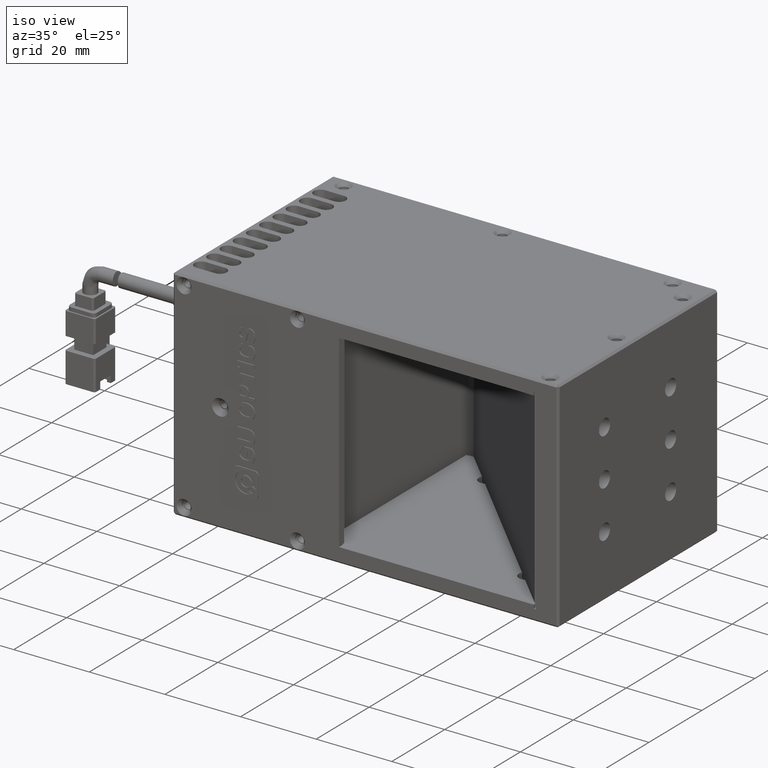
[diagram: clean part render]
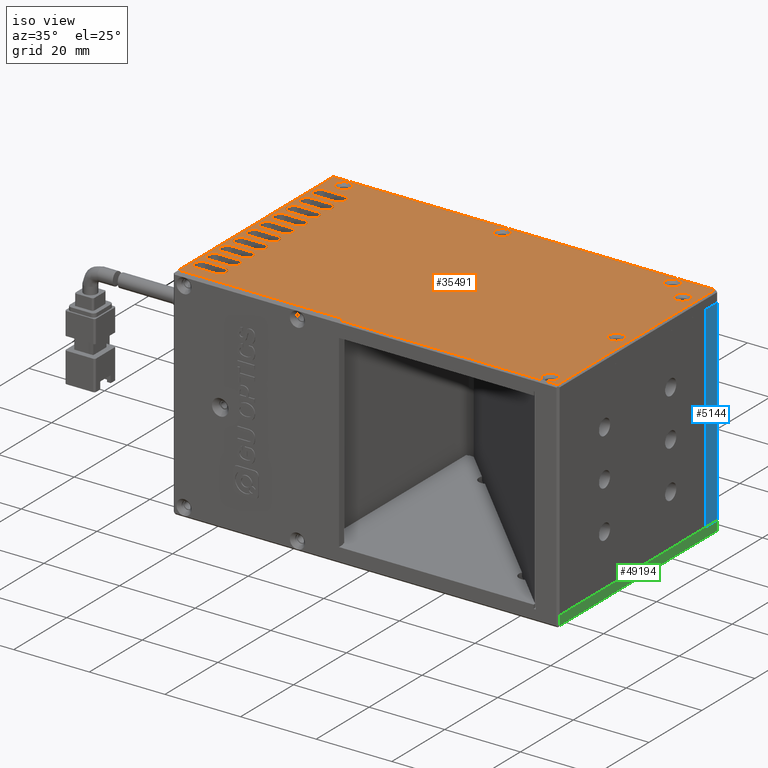
[diagram: same view with three faces highlighted in distinct colors, each labeled with its STEP entity id]
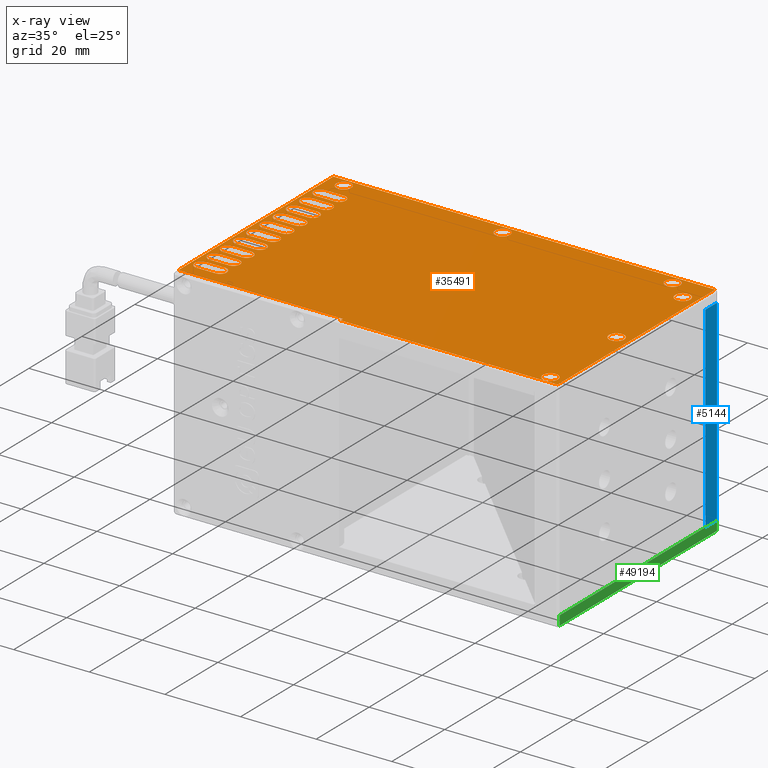
[diagram: x-ray of the same camera — body ghosted, the three highlighted faces saturated]
A machine part, iso view with three faces highlighted in distinct colors.
The next image is the same camera in x-ray (body ghosted, the three faces saturated) — at least one of them is partly hidden behind the body in this view.
Their STEP definitions:

[orange] entity #35491 — the highlighted planar face has unit normal (0, 0, -1).
#1 = VERTEX_POINT ( 'NONE', #50717 ) ;
#28 = DIRECTION ( 'NONE',  ( -1.000000000000000000, 0.0000000000000000000, -0.0000000000000000000 ) ) ;
#35 = DIRECTION ( 'NONE',  ( 1.000000000000000000, 0.0000000000000000000, 0.0000000000000000000 ) ) ;
#179 = DIRECTION ( 'NONE',  ( -0.0000000000000000000, -0.0000000000000000000, 1.000000000000000000 ) ) ;
#205 = AXIS2_PLACEMENT_3D ( 'NONE', #42269, #10490, #47532 ) ;
#401 = CARTESIAN_POINT ( 'NONE',  ( -58.82424922391152200, 38.77599333090265100, 58.00000000000955700 ) ) ;
#435 = AXIS2_PLACEMENT_3D ( 'NONE', #55548, #23803, #60918 ) ;
#496 = VECTOR ( 'NONE', #36617, 1000.000000000000000 ) ;
#657 = EDGE_CURVE ( 'NONE', #45064, #12126, #4008, .T. ) ;
#724 = CIRCLE ( 'NONE', #45792, 1.750000000000001600 ) ;
#737 = ORIENTED_EDGE ( 'NONE', *, *, #64308, .F. ) ;
#934 = CARTESIAN_POINT ( 'NONE',  ( -60.57424922391149400, 0.5259933309026375600, 58.00000000000955700 ) ) ;
#951 = EDGE_CURVE ( 'NONE', #48505, #64662, #26217, .T. ) ;
#962 = CIRCLE ( 'NONE', #55253, 1.999999999914958700 ) ;
#1009 = CARTESIAN_POINT ( 'NONE',  ( -60.57424922391150800, 23.77599333090263700, 58.00000000000955700 ) ) ;
#1559 = DIRECTION ( 'NONE',  ( 1.000000000000000000, 0.0000000000000000000, 0.0000000000000000000 ) ) ;
#1630 = DIRECTION ( 'NONE',  ( -0.0000000000000000000, -0.0000000000000000000, 1.000000000000000000 ) ) ;
#1632 = VERTEX_POINT ( 'NONE', #41015 ) ;
#1747 = FACE_BOUND ( 'NONE', #42244, .T. ) ;
#1851 = ORIENTED_EDGE ( 'NONE', *, *, #30786, .F. ) ;
#1892 = DIRECTION ( 'NONE',  ( 1.000000000000000000, 0.0000000000000000000, 0.0000000000000000000 ) ) ;
#1946 = DIRECTION ( 'NONE',  ( -0.0000000000000000000, -0.0000000000000000000, 1.000000000000000000 ) ) ;
#2128 = VERTEX_POINT ( 'NONE', #19617 ) ;
#2359 = DIRECTION ( 'NONE',  ( 1.000000000000000000, -0.0000000000000000000, 0.0000000000000000000 ) ) ;
#2451 = DIRECTION ( 'NONE',  ( 1.000000000000000000, 0.0000000000000000000, 0.0000000000000000000 ) ) ;
#2540 = EDGE_CURVE ( 'NONE', #31133, #61516, #33125, .T. ) ;
#2558 = CARTESIAN_POINT ( 'NONE',  ( -63.57424922391151500, 49.77699333090261300, 58.00000000000955700 ) ) ;
#2578 = AXIS2_PLACEMENT_3D ( 'NONE', #57320, #25522, #62651 ) ;
#2654 = EDGE_CURVE ( 'NONE', #56289, #19717, #62065, .T. ) ;
#2733 = DIRECTION ( 'NONE',  ( -1.000000000000000000, 0.0000000000000000000, -0.0000000000000000000 ) ) ;
#2915 = VERTEX_POINT ( 'NONE', #26603 ) ;
#3258 = CARTESIAN_POINT ( 'NONE',  ( -65.57424922391152200, 5.525993330902634800, 58.00000000000955700 ) ) ;
#3409 = FACE_BOUND ( 'NONE', #63558, .T. ) ;
#3575 = DIRECTION ( 'NONE',  ( -1.000000000000000000, 0.0000000000000000000, -0.0000000000000000000 ) ) ;
#3583 = VECTOR ( 'NONE', #8558, 1000.000000000000000 ) ;
#3675 = ORIENTED_EDGE ( 'NONE', *, *, #16150, .F. ) ;
#3688 = CARTESIAN_POINT ( 'NONE',  ( -65.57424922391152200, 25.52599333090264000, 58.00000000000955700 ) ) ;
#4008 = CIRCLE ( 'NONE', #47478, 1.750000000000001600 ) ;
#4036 = CARTESIAN_POINT ( 'NONE',  ( 33.42575077608847800, -6.223006669097353300, 58.00000000000955700 ) ) ;
#4094 = VERTEX_POINT ( 'NONE', #31349 ) ;
#4116 = EDGE_CURVE ( 'NONE', #14755, #23126, #66633, .T. ) ;
#4143 = CARTESIAN_POINT ( 'NONE',  ( -65.57424922391152200, 18.77599333090263300, 58.00000000000955700 ) ) ;
#4197 = CARTESIAN_POINT ( 'NONE',  ( -60.57424922391150800, 20.52599333090263300, 58.00000000000955700 ) ) ;
#4231 = LINE ( 'NONE', #29014, #16689 ) ;
#4315 = DIRECTION ( 'NONE',  ( -0.0000000000000000000, -0.0000000000000000000, 1.000000000000000000 ) ) ;
#4333 = VERTEX_POINT ( 'NONE', #54925 ) ;
#4358 = CARTESIAN_POINT ( 'NONE',  ( -58.82424922391149400, -1.224006669097364100, 58.00000000000956400 ) ) ;
#4554 = AXIS2_PLACEMENT_3D ( 'NONE', #31964, #179, #37305 ) ;
#4633 = VERTEX_POINT ( 'NONE', #47738 ) ;
#4668 = CIRCLE ( 'NONE', #26406, 1.750000000000001600 ) ;
#4731 = DIRECTION ( 'NONE',  ( -1.000000000000000000, 0.0000000000000000000, -0.0000000000000000000 ) ) ;
#4869 = CARTESIAN_POINT ( 'NONE',  ( 33.42575077608847800, 52.27699333090262000, 58.00000000000955700 ) ) ;
#4904 = VECTOR ( 'NONE', #55702, 1000.000000000000000 ) ;
#4972 = DIRECTION ( 'NONE',  ( 1.000000000000000000, 0.0000000000000000000, 0.0000000000000000000 ) ) ;
#5058 = FACE_BOUND ( 'NONE', #44407, .T. ) ;
#5072 = DIRECTION ( 'NONE',  ( -0.0000000000000000000, -0.0000000000000000000, 1.000000000000000000 ) ) ;
#5162 = VERTEX_POINT ( 'NONE', #41676 ) ;
#5214 = CIRCLE ( 'NONE', #53479, 1.750000000000001600 ) ;
#5266 = CIRCLE ( 'NONE', #60798, 1.750000000000001600 ) ;
#5321 = VERTEX_POINT ( 'NONE', #37710 ) ;
#5578 = EDGE_CURVE ( 'NONE', #35455, #46441, #43467, .T. ) ;
#5828 = CIRCLE ( 'NONE', #52603, 1.750000000000001600 ) ;
#5929 = VERTEX_POINT ( 'NONE', #27364 ) ;
#6080 = DIRECTION ( 'NONE',  ( -0.0000000000000000000, -0.0000000000000000000, 1.000000000000000000 ) ) ;
#6360 = DIRECTION ( 'NONE',  ( 1.000000000000000000, 0.0000000000000000000, 0.0000000000000000000 ) ) ;
#6482 = CARTESIAN_POINT ( 'NONE',  ( -21.57424922391151200, 49.77699333090261300, 57.99999999995271300 ) ) ;
#6934 = VERTEX_POINT ( 'NONE', #53178 ) ;
#6958 = AXIS2_PLACEMENT_3D ( 'NONE', #33394, #1630, #38684 ) ;
#7189 = CARTESIAN_POINT ( 'NONE',  ( -60.57424922391150800, 2.025993330902632100, 58.00000000000955700 ) ) ;
#7342 = VERTEX_POINT ( 'NONE', #53907 ) ;
#7371 = VECTOR ( 'NONE', #39577, 1000.000000000000000 ) ;
#7678 = DIRECTION ( 'NONE',  ( -0.0000000000000000000, 0.0000000000000000000, 1.000000000000000000 ) ) ;
#7867 = ORIENTED_EDGE ( 'NONE', *, *, #54707, .F. ) ;
#7899 = DIRECTION ( 'NONE',  ( 1.000000000000000000, 0.0000000000000000000, 0.0000000000000000000 ) ) ;
#7901 = CARTESIAN_POINT ( 'NONE',  ( -60.57424922391149400, -1.224006669097364100, 58.00000000000956400 ) ) ;
#7982 = AXIS2_PLACEMENT_3D ( 'NONE', #27962, #65064, #33365 ) ;
#8558 = DIRECTION ( 'NONE',  ( -1.000000000000000000, 0.0000000000000000000, -0.0000000000000000000 ) ) ;
#8592 = VERTEX_POINT ( 'NONE', #3258 ) ;
#8665 = CARTESIAN_POINT ( 'NONE',  ( -65.57424922391152200, 32.02599333090262900, 58.00000000000955700 ) ) ;
#8807 = VERTEX_POINT ( 'NONE', #15957 ) ;
#8849 = CIRCLE ( 'NONE', #67195, 1.750000000000001600 ) ;
#8903 = EDGE_LOOP ( 'NONE', ( #55621, #52237, #36328, #59710, #26487 ) ) ;
#9465 = DIRECTION ( 'NONE',  ( 1.000000000000000000, 0.0000000000000000000, 0.0000000000000000000 ) ) ;
#9480 = DIRECTION ( 'NONE',  ( -0.0000000000000000000, -0.0000000000000000000, 1.000000000000000000 ) ) ;
#9586 = AXIS2_PLACEMENT_3D ( 'NONE', #1009, #38118, #6360 ) ;
#9635 = AXIS2_PLACEMENT_3D ( 'NONE', #36063, #4315, #41413 ) ;
#9708 = LINE ( 'NONE', #51488, #36238 ) ;
#9802 = EDGE_CURVE ( 'NONE', #59982, #62490, #30721, .T. ) ;
#9915 = EDGE_CURVE ( 'NONE', #66863, #15697, #36519, .T. ) ;
#10006 = CARTESIAN_POINT ( 'NONE',  ( 33.42575077608847800, 32.02599333090262900, 58.00000000000955700 ) ) ;
#10024 = EDGE_CURVE ( 'NONE', #23126, #14755, #53040, .T. ) ;
#10097 = VECTOR ( 'NONE', #45762, 1000.000000000000000 ) ;
#10102 = ORIENTED_EDGE ( 'NONE', *, *, #53953, .F. ) ;
#10264 = CARTESIAN_POINT ( 'NONE',  ( 33.42575077608847800, 40.52599333090263700, 58.00000000000955700 ) ) ;
#10288 = DIRECTION ( 'NONE',  ( -1.000000000000000000, 0.0000000000000000000, -0.0000000000000000000 ) ) ;
#10293 = EDGE_CURVE ( 'NONE', #62950, #35455, #724, .T. ) ;
#10310 = EDGE_CURVE ( 'NONE', #4633, #27803, #41377, .T. ) ;
#10474 = EDGE_CURVE ( 'NONE', #5929, #1632, #63716, .T. ) ;
#10490 = DIRECTION ( 'NONE',  ( -0.0000000000000000000, -0.0000000000000000000, 1.000000000000000000 ) ) ;
#10548 = CARTESIAN_POINT ( 'NONE',  ( -65.57424922391152200, 13.77599333090263500, 58.00000000000955700 ) ) ;
#10577 = ORIENTED_EDGE ( 'NONE', *, *, #64658, .F. ) ;
#10797 = CIRCLE ( 'NONE', #51661, 1.750000000000001600 ) ;
#11014 = EDGE_CURVE ( 'NONE', #23761, #41226, #41059, .T. ) ;
#11187 = DIRECTION ( 'NONE',  ( -0.0000000000000000000, 0.0000000000000000000, 1.000000000000000000 ) ) ;
#11192 = VERTEX_POINT ( 'NONE', #22549 ) ;
#11339 = EDGE_LOOP ( 'NONE', ( #737, #3675, #50774, #53536, #13956 ) ) ;
#11468 = EDGE_CURVE ( 'NONE', #5162, #7342, #61611, .T. ) ;
#11482 = CARTESIAN_POINT ( 'NONE',  ( -65.57424922391152200, 43.77599333090263700, 58.00000000000955700 ) ) ;
#11550 = VERTEX_POINT ( 'NONE', #26369 ) ;
#11587 = AXIS2_PLACEMENT_3D ( 'NONE', #14731, #51801, #20055 ) ;
#11588 = CARTESIAN_POINT ( 'NONE',  ( -65.57424922391152200, 22.02599333090263300, 58.00000000000955700 ) ) ;
#11704 = CARTESIAN_POINT ( 'NONE',  ( -60.57424922391150800, 10.52599333090263300, 58.00000000000955700 ) ) ;
#11769 = DIRECTION ( 'NONE',  ( 1.000000000000000000, 0.0000000000000000000, 0.0000000000000000000 ) ) ;
#11870 = CARTESIAN_POINT ( 'NONE',  ( -60.57424922391150800, 23.77599333090263700, 58.00000000000955700 ) ) ;
#11990 = DIRECTION ( 'NONE',  ( -1.000000000000000000, 0.0000000000000000000, -0.0000000000000000000 ) ) ;
#12106 = CARTESIAN_POINT ( 'NONE',  ( -58.82424922391150800, 28.77599333090263700, 58.00000000000955700 ) ) ;
#12126 = VERTEX_POINT ( 'NONE', #25002 ) ;
#12557 = CARTESIAN_POINT ( 'NONE',  ( -60.57424922391150800, 30.52599333090263700, 58.00000000000955700 ) ) ;
#12616 = LINE ( 'NONE', #32071, #67275 ) ;
#12645 = VERTEX_POINT ( 'NONE', #4358 ) ;
#12649 = CIRCLE ( 'NONE', #49989, 1.750000000000001600 ) ;
#12773 = ORIENTED_EDGE ( 'NONE', *, *, #39904, .F. ) ;
#13018 = ORIENTED_EDGE ( 'NONE', *, *, #56778, .F. ) ;
#13221 = DIRECTION ( 'NONE',  ( 1.000000000000000000, 0.0000000000000000000, 0.0000000000000000000 ) ) ;
#13311 = VECTOR ( 'NONE', #3575, 1000.000000000000000 ) ;
#13338 = VECTOR ( 'NONE', #2359, 1000.000000000000000 ) ;
#13372 = EDGE_CURVE ( 'NONE', #65267, #26876, #5266, .T. ) ;
#13712 = CARTESIAN_POINT ( 'NONE',  ( -63.57424922391151500, 49.77699333090261300, 58.00000000000955700 ) ) ;
#13877 = CARTESIAN_POINT ( 'NONE',  ( 31.42575077600342200, 45.02699333090264100, 58.00000000000955700 ) ) ;
#13956 = ORIENTED_EDGE ( 'NONE', *, *, #16712, .F. ) ;
#14011 = CARTESIAN_POINT ( 'NONE',  ( 33.42575077608847800, 45.52599333090263700, 58.00000000000955700 ) ) ;
#14068 = DIRECTION ( 'NONE',  ( -0.0000000000000000000, -0.0000000000000000000, 1.000000000000000000 ) ) ;
#14133 = CARTESIAN_POINT ( 'NONE',  ( -60.57424922391150800, 15.52599333090263700, 58.00000000000955700 ) ) ;
#14183 = FACE_BOUND ( 'NONE', #40288, .T. ) ;
#14420 = DIRECTION ( 'NONE',  ( 1.224646799147353500E-016, -1.000000000000000000, -0.0000000000000000000 ) ) ;
#14507 = EDGE_CURVE ( 'NONE', #4333, #12645, #28108, .T. ) ;
#14604 = ORIENTED_EDGE ( 'NONE', *, *, #15634, .F. ) ;
#14731 = CARTESIAN_POINT ( 'NONE',  ( -60.57424922391150800, 8.775993330902631200, 58.00000000000955700 ) ) ;
#14755 = VERTEX_POINT ( 'NONE', #30686 ) ;
#14862 = VERTEX_POINT ( 'NONE', #21382 ) ;
#15181 = EDGE_CURVE ( 'NONE', #20783, #68242, #56144, .T. ) ;
#15568 = ORIENTED_EDGE ( 'NONE', *, *, #68020, .F. ) ;
#15583 = EDGE_CURVE ( 'NONE', #55228, #56289, #31136, .T. ) ;
#15634 = EDGE_CURVE ( 'NONE', #49053, #28008, #56015, .T. ) ;
#15697 = VERTEX_POINT ( 'NONE', #50728 ) ;
#15767 = VERTEX_POINT ( 'NONE', #14133 ) ;
#15838 = FACE_BOUND ( 'NONE', #48366, .T. ) ;
#15880 = DIRECTION ( 'NONE',  ( 1.000000000000000000, 0.0000000000000000000, 0.0000000000000000000 ) ) ;
#15957 = CARTESIAN_POINT ( 'NONE',  ( -60.57424922391150800, 25.52599333090264000, 58.00000000000955700 ) ) ;
#15973 = CARTESIAN_POINT ( 'NONE',  ( -60.57424922391150800, 22.02599333090263300, 58.00000000000955700 ) ) ;
#16064 = CARTESIAN_POINT ( 'NONE',  ( -60.57424922391152200, 38.77599333090265100, 58.00000000000955700 ) ) ;
#16150 = EDGE_CURVE ( 'NONE', #8592, #40369, #41669, .T. ) ;
#16273 = ORIENTED_EDGE ( 'NONE', *, *, #10310, .F. ) ;
#16497 = ORIENTED_EDGE ( 'NONE', *, *, #30545, .F. ) ;
#16586 = ORIENTED_EDGE ( 'NONE', *, *, #46950, .F. ) ;
#16689 = VECTOR ( 'NONE', #60776, 1000.000000000000000 ) ;
#16712 = EDGE_CURVE ( 'NONE', #54602, #45064, #5828, .T. ) ;
#16842 = DIRECTION ( 'NONE',  ( 1.000000000000000000, 0.0000000000000000000, 0.0000000000000000000 ) ) ;
#17192 = ORIENTED_EDGE ( 'NONE', *, *, #29067, .F. ) ;
#17267 = DIRECTION ( 'NONE',  ( 1.000000000000000000, 0.0000000000000000000, 0.0000000000000000000 ) ) ;
#17296 = ORIENTED_EDGE ( 'NONE', *, *, #49455, .F. ) ;
#17524 = FACE_BOUND ( 'NONE', #67565, .T. ) ;
#17611 = LINE ( 'NONE', #64647, #31676 ) ;
#18144 = VERTEX_POINT ( 'NONE', #8665 ) ;
#18246 = CARTESIAN_POINT ( 'NONE',  ( 33.42575077608847800, 25.52599333090264000, 58.00000000000955700 ) ) ;
#18295 = CARTESIAN_POINT ( 'NONE',  ( -60.57424922391150800, 7.025993330902629500, 58.00000000000955700 ) ) ;
#18397 = CARTESIAN_POINT ( 'NONE',  ( 33.42575077608847800, 10.52599333090263300, 58.00000000000955700 ) ) ;
#18465 = EDGE_CURVE ( 'NONE', #6934, #11550, #51768, .T. ) ;
#18977 = DIRECTION ( 'NONE',  ( 1.000000000000000000, -0.0000000000000000000, 0.0000000000000000000 ) ) ;
#19033 = DIRECTION ( 'NONE',  ( 1.000000000000000000, 0.0000000000000000000, 0.0000000000000000000 ) ) ;
#19144 = FACE_BOUND ( 'NONE', #62962, .T. ) ;
#19164 = CARTESIAN_POINT ( 'NONE',  ( -60.57424922391150800, 28.77599333090263700, 58.00000000000955700 ) ) ;
#19347 = EDGE_CURVE ( 'NONE', #45981, #5321, #40182, .T. ) ;
#19617 = CARTESIAN_POINT ( 'NONE',  ( -68.07424922391153600, 52.27699333090262000, 58.00000000000956400 ) ) ;
#19717 = VERTEX_POINT ( 'NONE', #60409 ) ;
#19966 = AXIS2_PLACEMENT_3D ( 'NONE', #65889, #34218, #2451 ) ;
#19981 = DIRECTION ( 'NONE',  ( -0.0000000000000000000, -0.0000000000000000000, 1.000000000000000000 ) ) ;
#20055 = DIRECTION ( 'NONE',  ( 1.000000000000000000, 0.0000000000000000000, 0.0000000000000000000 ) ) ;
#20112 = LINE ( 'NONE', #38214, #59104 ) ;
#20155 = ORIENTED_EDGE ( 'NONE', *, *, #48959, .F. ) ;
#20175 = VECTOR ( 'NONE', #55450, 1000.000000000000000 ) ;
#20486 = VERTEX_POINT ( 'NONE', #40364 ) ;
#20660 = ORIENTED_EDGE ( 'NONE', *, *, #59120, .F. ) ;
#20682 = ORIENTED_EDGE ( 'NONE', *, *, #24916, .F. ) ;
#20783 = VERTEX_POINT ( 'NONE', #11588 ) ;
#20831 = EDGE_CURVE ( 'NONE', #22719, #2915, #58799, .T. ) ;
#20952 = VECTOR ( 'NONE', #30612, 1000.000000000000000 ) ;
#21352 = DIRECTION ( 'NONE',  ( 1.000000000000000000, 0.0000000000000000000, 0.0000000000000000000 ) ) ;
#21382 = CARTESIAN_POINT ( 'NONE',  ( -60.57424922391152200, 40.52599333090263700, 58.00000000000955700 ) ) ;
#21410 = LINE ( 'NONE', #65732, #7371 ) ;
#21663 = EDGE_CURVE ( 'NONE', #48008, #4094, #46667, .T. ) ;
#21818 = EDGE_CURVE ( 'NONE', #15767, #1, #12616, .T. ) ;
#22261 = DIRECTION ( 'NONE',  ( -0.0000000000000000000, 0.0000000000000000000, 1.000000000000000000 ) ) ;
#22389 = AXIS2_PLACEMENT_3D ( 'NONE', #65027, #33330, #1559 ) ;
#22517 = VERTEX_POINT ( 'NONE', #3688 ) ;
#22527 = DIRECTION ( 'NONE',  ( -1.000000000000000000, 0.0000000000000000000, -0.0000000000000000000 ) ) ;
#22549 = CARTESIAN_POINT ( 'NONE',  ( -65.57424922391152200, 10.52599333090263300, 58.00000000000955700 ) ) ;
#22719 = VERTEX_POINT ( 'NONE', #48362 ) ;
#23023 = CARTESIAN_POINT ( 'NONE',  ( -65.57424922391152200, 40.52599333090263700, 58.00000000000955700 ) ) ;
#23071 = ORIENTED_EDGE ( 'NONE', *, *, #10474, .F. ) ;
#23093 = CARTESIAN_POINT ( 'NONE',  ( -24.57424922391152200, -6.223006669097354200, 58.00000000000955700 ) ) ;
#23126 = VERTEX_POINT ( 'NONE', #26231 ) ;
#23236 = LINE ( 'NONE', #45427, #35678 ) ;
#23385 = CIRCLE ( 'NONE', #4554, 1.750000000000001600 ) ;
#23434 = DIRECTION ( 'NONE',  ( -0.0000000000000000000, -0.0000000000000000000, 1.000000000000000000 ) ) ;
#23565 = CARTESIAN_POINT ( 'NONE',  ( -58.82424922391150800, 8.775993330902631200, 58.00000000000955700 ) ) ;
#23761 = VERTEX_POINT ( 'NONE', #934 ) ;
#23803 = DIRECTION ( 'NONE',  ( -0.0000000000000000000, -0.0000000000000000000, 1.000000000000000000 ) ) ;
#24023 = CARTESIAN_POINT ( 'NONE',  ( -60.57424922391152200, 35.52599333090262900, 58.00000000000955700 ) ) ;
#24156 = LINE ( 'NONE', #14011, #10097 ) ;
#24373 = EDGE_CURVE ( 'NONE', #61516, #18144, #10797, .T. ) ;
#24457 = DIRECTION ( 'NONE',  ( 1.000000000000000000, 0.0000000000000000000, 0.0000000000000000000 ) ) ;
#24729 = ORIENTED_EDGE ( 'NONE', *, *, #13372, .F. ) ;
#24916 = EDGE_CURVE ( 'NONE', #64208, #61269, #33031, .T. ) ;
#25002 = CARTESIAN_POINT ( 'NONE',  ( -60.57424922391150800, 5.525993330902634800, 58.00000000000955700 ) ) ;
#25205 = DIRECTION ( 'NONE',  ( -0.0000000000000000000, -0.0000000000000000000, 1.000000000000000000 ) ) ;
#25369 = DIRECTION ( 'NONE',  ( -0.0000000000000000000, -0.0000000000000000000, 1.000000000000000000 ) ) ;
#25444 = VERTEX_POINT ( 'NONE', #46604 ) ;
#25522 = DIRECTION ( 'NONE',  ( -0.0000000000000000000, 0.0000000000000000000, 1.000000000000000000 ) ) ;
#25814 = CARTESIAN_POINT ( 'NONE',  ( -60.57424922391152200, 32.02599333090262900, 58.00000000000955700 ) ) ;
#26138 = DIRECTION ( 'NONE',  ( 1.000000000000000000, -0.0000000000000000000, 0.0000000000000000000 ) ) ;
#26217 = CIRCLE ( 'NONE', #66157, 1.999999999914955100 ) ;
#26231 = CARTESIAN_POINT ( 'NONE',  ( 31.42575077600345100, -4.973006669097366700, 58.00000000000955700 ) ) ;
#26369 = CARTESIAN_POINT ( 'NONE',  ( 21.42575077608801900, 49.77699333090261300, 58.00000000006640000 ) ) ;
#26405 = ORIENTED_EDGE ( 'NONE', *, *, #30019, .F. ) ;
#26406 = AXIS2_PLACEMENT_3D ( 'NONE', #4143, #41213, #9465 ) ;
#26487 = ORIENTED_EDGE ( 'NONE', *, *, #49026, .F. ) ;
#26525 = ORIENTED_EDGE ( 'NONE', *, *, #14507, .F. ) ;
#26603 = CARTESIAN_POINT ( 'NONE',  ( -58.82424922391152200, 43.77599333090263700, 58.00000000000955700 ) ) ;
#26876 = VERTEX_POINT ( 'NONE', #43427 ) ;
#26896 = VECTOR ( 'NONE', #4731, 1000.000000000000000 ) ;
#26907 = DIRECTION ( 'NONE',  ( -0.0000000000000000000, -0.0000000000000000000, 1.000000000000000000 ) ) ;
#27094 = CARTESIAN_POINT ( 'NONE',  ( -65.57424922378737600, 49.77699333090261300, 58.00000000000955700 ) ) ;
#27198 = CARTESIAN_POINT ( 'NONE',  ( -21.57424922391151200, 49.77699333090261300, 57.99999999995271300 ) ) ;
#27208 = AXIS2_PLACEMENT_3D ( 'NONE', #41228, #9480, #46568 ) ;
#27364 = CARTESIAN_POINT ( 'NONE',  ( 32.92575077608847100, -7.223006669097344500, 58.00000000000956400 ) ) ;
#27543 = DIRECTION ( 'NONE',  ( -0.0000000000000000000, -1.000000000000000000, -0.0000000000000000000 ) ) ;
#27678 = EDGE_CURVE ( 'NONE', #2128, #28352, #55231, .T. ) ;
#27705 = AXIS2_PLACEMENT_3D ( 'NONE', #10548, #47588, #15880 ) ;
#27733 = LINE ( 'NONE', #63276, #61765 ) ;
#27803 = VERTEX_POINT ( 'NONE', #401 ) ;
#27890 = EDGE_LOOP ( 'NONE', ( #7867, #24729, #37601, #51058, #16273 ) ) ;
#27962 = CARTESIAN_POINT ( 'NONE',  ( 29.42575077608846700, 45.02699333090264100, 58.00000000000955700 ) ) ;
#28008 = VERTEX_POINT ( 'NONE', #40025 ) ;
#28108 = CIRCLE ( 'NONE', #51120, 1.750000000000001600 ) ;
#28115 = EDGE_CURVE ( 'NONE', #2915, #64621, #66644, .T. ) ;
#28119 = DIRECTION ( 'NONE',  ( -0.0000000000000000000, -0.0000000000000000000, 1.000000000000000000 ) ) ;
#28219 = FACE_BOUND ( 'NONE', #11339, .T. ) ;
#28239 = CARTESIAN_POINT ( 'NONE',  ( -65.57424922391152200, 30.52599333090263700, 58.00000000000955700 ) ) ;
#28302 = AXIS2_PLACEMENT_3D ( 'NONE', #31588, #68622, #36922 ) ;
#28352 = VERTEX_POINT ( 'NONE', #59437 ) ;
#28372 = VERTEX_POINT ( 'NONE', #65204 ) ;
#28392 = ORIENTED_EDGE ( 'NONE', *, *, #2654, .F. ) ;
#28465 = DIRECTION ( 'NONE',  ( 1.000000000000000000, -0.0000000000000000000, 0.0000000000000000000 ) ) ;
#28527 = EDGE_CURVE ( 'NONE', #27803, #14862, #44228, .T. ) ;
#28723 = CARTESIAN_POINT ( 'NONE',  ( 33.42575077608847800, 12.02599333090263300, 58.00000000000955700 ) ) ;
#28747 = LINE ( 'NONE', #10006, #42905 ) ;
#28861 = ORIENTED_EDGE ( 'NONE', *, *, #44079, .F. ) ;
#29014 = CARTESIAN_POINT ( 'NONE',  ( -68.07424922391149400, 52.77699333090263400, 58.00000000000955700 ) ) ;
#29065 = LINE ( 'NONE', #28723, #13338 ) ;
#29067 = EDGE_CURVE ( 'NONE', #35596, #66863, #29065, .T. ) ;
#29478 = VECTOR ( 'NONE', #28465, 1000.000000000000000 ) ;
#29507 = DIRECTION ( 'NONE',  ( -0.0000000000000000000, -0.0000000000000000000, 1.000000000000000000 ) ) ;
#29617 = CARTESIAN_POINT ( 'NONE',  ( -60.57424922391152200, 45.52599333090263700, 58.00000000000955700 ) ) ;
#29837 = ORIENTED_EDGE ( 'NONE', *, *, #43959, .F. ) ;
#29905 = CARTESIAN_POINT ( 'NONE',  ( 23.42575077608848800, 49.77699333090261300, 58.00000000006640000 ) ) ;
#29937 = FACE_BOUND ( 'NONE', #58793, .T. ) ;
#30019 = EDGE_CURVE ( 'NONE', #46441, #11192, #62470, .T. ) ;
#30531 = AXIS2_PLACEMENT_3D ( 'NONE', #61280, #29507, #66534 ) ;
#30545 = EDGE_CURVE ( 'NONE', #12645, #23761, #50707, .T. ) ;
#30612 = DIRECTION ( 'NONE',  ( 1.000000000000000000, -0.0000000000000000000, 0.0000000000000000000 ) ) ;
#30686 = CARTESIAN_POINT ( 'NONE',  ( 27.42575077617351200, -4.973006669097366700, 58.00000000000955700 ) ) ;
#30708 = CARTESIAN_POINT ( 'NONE',  ( 27.42575077617351200, 45.02699333090264100, 58.00000000000955700 ) ) ;
#30721 = CIRCLE ( 'NONE', #31972, 1.999999999959541000 ) ;
#30786 = EDGE_CURVE ( 'NONE', #44018, #5162, #23385, .T. ) ;
#31133 = VERTEX_POINT ( 'NONE', #24023 ) ;
#31136 = LINE ( 'NONE', #60503, #29478 ) ;
#31349 = CARTESIAN_POINT ( 'NONE',  ( 27.42575077617351200, 20.02699333090263400, 58.00000000000955700 ) ) ;
#31379 = CIRCLE ( 'NONE', #36888, 1.750000000000001600 ) ;
#31581 = FACE_BOUND ( 'NONE', #37554, .T. ) ;
#31588 = CARTESIAN_POINT ( 'NONE',  ( 29.42575077608848100, -4.973006669097366700, 58.00000000000955700 ) ) ;
#31676 = VECTOR ( 'NONE', #27543, 1000.000000000000000 ) ;
#31699 = CARTESIAN_POINT ( 'NONE',  ( -60.57424922391150800, 17.02599333090263300, 58.00000000000955700 ) ) ;
#31774 = LINE ( 'NONE', #56265, #3583 ) ;
#31810 = DIRECTION ( 'NONE',  ( -0.0000000000000000000, -0.0000000000000000000, 1.000000000000000000 ) ) ;
#31964 = CARTESIAN_POINT ( 'NONE',  ( -65.57424922391152200, 28.77599333090263700, 58.00000000000955700 ) ) ;
#31972 = AXIS2_PLACEMENT_3D ( 'NONE', #27198, #64299, #32603 ) ;
#32071 = CARTESIAN_POINT ( 'NONE',  ( 33.42575077608847800, 15.52599333090263700, 58.00000000000955700 ) ) ;
#32082 = CIRCLE ( 'NONE', #7982, 1.999999999914955100 ) ;
#32466 = ORIENTED_EDGE ( 'NONE', *, *, #53311, .F. ) ;
#32537 = VECTOR ( 'NONE', #41143, 1000.000000000000000 ) ;
#32603 = DIRECTION ( 'NONE',  ( 1.000000000000000000, 0.0000000000000000000, 0.0000000000000000000 ) ) ;
#32896 = CIRCLE ( 'NONE', #435, 1.750000000000001600 ) ;
#33031 = LINE ( 'NONE', #42046, #45477 ) ;
#33125 = LINE ( 'NONE', #45110, #4904 ) ;
#33330 = DIRECTION ( 'NONE',  ( -0.0000000000000000000, -0.0000000000000000000, 1.000000000000000000 ) ) ;
#33365 = DIRECTION ( 'NONE',  ( 1.000000000000000000, 0.0000000000000000000, 0.0000000000000000000 ) ) ;
#33394 = CARTESIAN_POINT ( 'NONE',  ( -60.57424922391152200, 43.77599333090263700, 58.00000000000955700 ) ) ;
#33657 = DIRECTION ( 'NONE',  ( -0.0000000000000000000, -0.0000000000000000000, 1.000000000000000000 ) ) ;
#33710 = CARTESIAN_POINT ( 'NONE',  ( -60.57424922391150800, 3.775993330902633400, 58.00000000000956400 ) ) ;
#34000 = VERTEX_POINT ( 'NONE', #25814 ) ;
#34094 = ORIENTED_EDGE ( 'NONE', *, *, #19347, .F. ) ;
#34218 = DIRECTION ( 'NONE',  ( -0.0000000000000000000, 0.0000000000000000000, 1.000000000000000000 ) ) ;
#34383 = CIRCLE ( 'NONE', #43553, 2.000000000000466700 ) ;
#34494 = DIRECTION ( 'NONE',  ( 0.0000000000000000000, 0.0000000000000000000, -1.000000000000000000 ) ) ;
#34603 = ORIENTED_EDGE ( 'NONE', *, *, #27678, .F. ) ;
#35119 = ORIENTED_EDGE ( 'NONE', *, *, #59235, .F. ) ;
#35143 = ORIENTED_EDGE ( 'NONE', *, *, #9802, .F. ) ;
#35255 = DIRECTION ( 'NONE',  ( 1.000000000000000000, 0.0000000000000000000, 0.0000000000000000000 ) ) ;
#35455 = VERTEX_POINT ( 'NONE', #23565 ) ;
#35491 = ADVANCED_FACE ( 'NONE', ( #59789, #63115, #19144, #5058, #45723, #31581, #17524, #3409, #58114, #44094, #29937, #15838, #1747, #56443, #42402, #28219, #14183 ), #44952, .F. ) ;
#35596 = VERTEX_POINT ( 'NONE', #46281 ) ;
#35678 = VECTOR ( 'NONE', #18977, 1000.000000000000000 ) ;
#35831 = CARTESIAN_POINT ( 'NONE',  ( 33.42575077608847800, 42.02599333090263700, 58.00000000000955700 ) ) ;
#36063 = CARTESIAN_POINT ( 'NONE',  ( -60.57424922391152200, 43.77599333090263700, 58.00000000000955700 ) ) ;
#36238 = VECTOR ( 'NONE', #14420, 1000.000000000000000 ) ;
#36328 = ORIENTED_EDGE ( 'NONE', *, *, #2540, .F. ) ;
#36370 = ORIENTED_EDGE ( 'NONE', *, *, #4116, .F. ) ;
#36413 = ORIENTED_EDGE ( 'NONE', *, *, #64937, .F. ) ;
#36489 = VERTEX_POINT ( 'NONE', #12557 ) ;
#36519 = CIRCLE ( 'NONE', #67438, 1.750000000000001600 ) ;
#36617 = DIRECTION ( 'NONE',  ( 1.000000000000000000, -0.0000000000000000000, 0.0000000000000000000 ) ) ;
#36714 = DIRECTION ( 'NONE',  ( -0.0000000000000000000, -0.0000000000000000000, 1.000000000000000000 ) ) ;
#36815 = CARTESIAN_POINT ( 'NONE',  ( -60.57424922391150800, 28.77599333090263700, 58.00000000000955700 ) ) ;
#36837 = ORIENTED_EDGE ( 'NONE', *, *, #11014, .F. ) ;
#36888 = AXIS2_PLACEMENT_3D ( 'NONE', #68402, #36714, #4972 ) ;
#36922 = DIRECTION ( 'NONE',  ( 1.000000000000000000, 0.0000000000000000000, 0.0000000000000000000 ) ) ;
#37215 = VECTOR ( 'NONE', #39540, 1000.000000000000000 ) ;
#37305 = DIRECTION ( 'NONE',  ( 1.000000000000000000, 0.0000000000000000000, 0.0000000000000000000 ) ) ;
#37438 = AXIS2_PLACEMENT_3D ( 'NONE', #13712, #50763, #19033 ) ;
#37554 = EDGE_LOOP ( 'NONE', ( #50290, #35143 ) ) ;
#37601 = ORIENTED_EDGE ( 'NONE', *, *, #59801, .F. ) ;
#37710 = CARTESIAN_POINT ( 'NONE',  ( -65.57424922391152200, 42.02599333090263700, 58.00000000000955700 ) ) ;
#37712 = CIRCLE ( 'NONE', #27705, 1.750000000000001600 ) ;
#37820 = CARTESIAN_POINT ( 'NONE',  ( -60.57424922391152200, 33.77599333090262900, 58.00000000000955700 ) ) ;
#38044 = VECTOR ( 'NONE', #53756, 1000.000000000000000 ) ;
#38118 = DIRECTION ( 'NONE',  ( -0.0000000000000000000, -0.0000000000000000000, 1.000000000000000000 ) ) ;
#38214 = CARTESIAN_POINT ( 'NONE',  ( 33.42575077608847800, 5.525993330902634800, 58.00000000000955700 ) ) ;
#38297 = CARTESIAN_POINT ( 'NONE',  ( 33.42575077608847800, 7.025993330902629500, 58.00000000000955700 ) ) ;
#38684 = DIRECTION ( 'NONE',  ( 1.000000000000000000, 0.0000000000000000000, 0.0000000000000000000 ) ) ;
#38703 = ORIENTED_EDGE ( 'NONE', *, *, #5578, .F. ) ;
#39015 = DIRECTION ( 'NONE',  ( 1.000000000000000000, 0.0000000000000000000, 0.0000000000000000000 ) ) ;
#39400 = CARTESIAN_POINT ( 'NONE',  ( 29.42575077608847100, 20.02699333090263400, 58.00000000000955700 ) ) ;
#39517 = CARTESIAN_POINT ( 'NONE',  ( -58.82424922391150800, 3.775993330902633400, 58.00000000000956400 ) ) ;
#39540 = DIRECTION ( 'NONE',  ( -1.000000000000000000, 0.0000000000000000000, -0.0000000000000000000 ) ) ;
#39577 = DIRECTION ( 'NONE',  ( 1.000000000000000000, -0.0000000000000000000, 0.0000000000000000000 ) ) ;
#39613 = DIRECTION ( 'NONE',  ( -0.0000000000000000000, 0.0000000000000000000, 1.000000000000000000 ) ) ;
#39624 = EDGE_CURVE ( 'NONE', #64621, #45981, #24156, .T. ) ;
#39657 = CARTESIAN_POINT ( 'NONE',  ( -65.57424922391152200, 35.52599333090262900, 58.00000000000955700 ) ) ;
#39693 = LINE ( 'NONE', #38297, #38044 ) ;
#39754 = ORIENTED_EDGE ( 'NONE', *, *, #66030, .F. ) ;
#39904 = EDGE_CURVE ( 'NONE', #54999, #44258, #41491, .T. ) ;
#39913 = ORIENTED_EDGE ( 'NONE', *, *, #21663, .F. ) ;
#40025 = CARTESIAN_POINT ( 'NONE',  ( -61.57424922403564700, 49.77699333090261300, 58.00000000000955700 ) ) ;
#40068 = ORIENTED_EDGE ( 'NONE', *, *, #10024, .F. ) ;
#40182 = CIRCLE ( 'NONE', #50721, 1.750000000000001600 ) ;
#40288 = EDGE_LOOP ( 'NONE', ( #61920, #35119, #36837, #16497, #26525 ) ) ;
#40339 = EDGE_CURVE ( 'NONE', #28008, #49053, #56235, .T. ) ;
#40364 = CARTESIAN_POINT ( 'NONE',  ( -65.57424922391150800, -2.974006669097365700, 58.00000000000955700 ) ) ;
#40369 = VERTEX_POINT ( 'NONE', #62104 ) ;
#40851 = EDGE_CURVE ( 'NONE', #20486, #4333, #21410, .T. ) ;
#40953 = EDGE_CURVE ( 'NONE', #52490, #36489, #41331, .T. ) ;
#41015 = CARTESIAN_POINT ( 'NONE',  ( -24.57424922391152900, -7.223006669097345300, 58.00000000000955700 ) ) ;
#41059 = LINE ( 'NONE', #41822, #26896 ) ;
#41143 = DIRECTION ( 'NONE',  ( 1.000000000000000000, -0.0000000000000000000, 0.0000000000000000000 ) ) ;
#41213 = DIRECTION ( 'NONE',  ( -0.0000000000000000000, -0.0000000000000000000, 1.000000000000000000 ) ) ;
#41226 = VERTEX_POINT ( 'NONE', #58760 ) ;
#41228 = CARTESIAN_POINT ( 'NONE',  ( -60.57424922391150800, 13.77599333090263500, 58.00000000000955700 ) ) ;
#41331 = CIRCLE ( 'NONE', #64102, 1.750000000000001600 ) ;
#41377 = CIRCLE ( 'NONE', #52844, 1.750000000000001600 ) ;
#41413 = DIRECTION ( 'NONE',  ( 1.000000000000000000, 0.0000000000000000000, 0.0000000000000000000 ) ) ;
#41484 = EDGE_LOOP ( 'NONE', ( #34603, #68539, #12773, #62291, #23071, #29837 ) ) ;
#41491 = LINE ( 'NONE', #4036, #13311 ) ;
#41669 = CIRCLE ( 'NONE', #22389, 1.750000000000001600 ) ;
#41676 = CARTESIAN_POINT ( 'NONE',  ( -65.57424922391152200, 27.02599333090263300, 58.00000000000955700 ) ) ;
#41822 = CARTESIAN_POINT ( 'NONE',  ( 33.42575077608847800, 0.5259933309026375600, 58.00000000000955700 ) ) ;
#42019 = EDGE_LOOP ( 'NONE', ( #39913, #28861 ) ) ;
#42046 = CARTESIAN_POINT ( 'NONE',  ( 33.42575077608847800, 20.52599333090263300, 58.00000000000955700 ) ) ;
#42177 = DIRECTION ( 'NONE',  ( 1.000000000000000000, 0.0000000000000000000, 0.0000000000000000000 ) ) ;
#42244 = EDGE_LOOP ( 'NONE', ( #56982, #39754, #20682, #20155, #28392 ) ) ;
#42250 = VECTOR ( 'NONE', #28, 1000.000000000000000 ) ;
#42269 = CARTESIAN_POINT ( 'NONE',  ( -60.57424922391150800, 18.77599333090263300, 58.00000000000955700 ) ) ;
#42402 = FACE_BOUND ( 'NONE', #45165, .T. ) ;
#42905 = VECTOR ( 'NONE', #52361, 1000.000000000000000 ) ;
#42952 = EDGE_CURVE ( 'NONE', #12126, #8592, #20112, .T. ) ;
#42984 = CARTESIAN_POINT ( 'NONE',  ( 29.42575077608846700, 45.02699333090264100, 58.00000000000955700 ) ) ;
#43167 = CIRCLE ( 'NONE', #44271, 1.999999999959541000 ) ;
#43185 = DIRECTION ( 'NONE',  ( 1.000000000000000000, 0.0000000000000000000, 0.0000000000000000000 ) ) ;
#43427 = CARTESIAN_POINT ( 'NONE',  ( -65.57424922391152200, 37.02599333090262900, 58.00000000000955700 ) ) ;
#43465 = CIRCLE ( 'NONE', #9586, 1.750000000000001600 ) ;
#43467 = CIRCLE ( 'NONE', #11587, 1.750000000000001600 ) ;
#43553 = AXIS2_PLACEMENT_3D ( 'NONE', #29905, #66920, #35255 ) ;
#43581 = DIRECTION ( 'NONE',  ( -0.0000000000000000000, 0.0000000000000000000, 1.000000000000000000 ) ) ;
#43959 = EDGE_CURVE ( 'NONE', #28352, #5929, #17611, .T. ) ;
#43970 = EDGE_LOOP ( 'NONE', ( #55876, #14604 ) ) ;
#44018 = VERTEX_POINT ( 'NONE', #28239 ) ;
#44079 = EDGE_CURVE ( 'NONE', #4094, #48008, #962, .T. ) ;
#44087 = ORIENTED_EDGE ( 'NONE', *, *, #18465, .F. ) ;
#44094 = FACE_BOUND ( 'NONE', #8903, .T. ) ;
#44228 = CIRCLE ( 'NONE', #30531, 1.750000000000001600 ) ;
#44258 = VERTEX_POINT ( 'NONE', #63256 ) ;
#44271 = AXIS2_PLACEMENT_3D ( 'NONE', #6482, #43581, #11769 ) ;
#44401 = EDGE_CURVE ( 'NONE', #62490, #59982, #43167, .T. ) ;
#44407 = EDGE_LOOP ( 'NONE', ( #20660, #57134 ) ) ;
#44571 = CARTESIAN_POINT ( 'NONE',  ( -23.57424922387105300, 49.77699333090261300, 57.99999999995271300 ) ) ;
#44784 = DIRECTION ( 'NONE',  ( 1.000000000000000000, 0.0000000000000000000, 0.0000000000000000000 ) ) ;
#44952 = PLANE ( 'NONE',  #67133 ) ;
#45007 = DIRECTION ( 'NONE',  ( -0.0000000000000000000, -0.0000000000000000000, 1.000000000000000000 ) ) ;
#45064 = VERTEX_POINT ( 'NONE', #39517 ) ;
#45110 = CARTESIAN_POINT ( 'NONE',  ( 33.42575077608847800, 35.52599333090262900, 58.00000000000955700 ) ) ;
#45165 = EDGE_LOOP ( 'NONE', ( #48836, #32466, #26405, #38703, #60441 ) ) ;
#45427 = CARTESIAN_POINT ( 'NONE',  ( 33.42575077608847800, 37.02599333090262900, 58.00000000000955700 ) ) ;
#45477 = VECTOR ( 'NONE', #10288, 1000.000000000000000 ) ;
#45600 = ORIENTED_EDGE ( 'NONE', *, *, #39624, .F. ) ;
#45723 = FACE_BOUND ( 'NONE', #43970, .T. ) ;
#45762 = DIRECTION ( 'NONE',  ( -1.000000000000000000, 0.0000000000000000000, -0.0000000000000000000 ) ) ;
#45792 = AXIS2_PLACEMENT_3D ( 'NONE', #63553, #31810, #35 ) ;
#45819 = CARTESIAN_POINT ( 'NONE',  ( -65.57424922391152200, 33.77599333090262900, 58.00000000000955700 ) ) ;
#45981 = VERTEX_POINT ( 'NONE', #49557 ) ;
#46281 = CARTESIAN_POINT ( 'NONE',  ( -65.57424922391152200, 12.02599333090263300, 58.00000000000955700 ) ) ;
#46441 = VERTEX_POINT ( 'NONE', #11704 ) ;
#46568 = DIRECTION ( 'NONE',  ( 1.000000000000000000, 0.0000000000000000000, 0.0000000000000000000 ) ) ;
#46604 = CARTESIAN_POINT ( 'NONE',  ( -65.57424922391152200, 7.025993330902629500, 58.00000000000955700 ) ) ;
#46619 = LINE ( 'NONE', #35831, #32537 ) ;
#46667 = CIRCLE ( 'NONE', #2578, 1.999999999914958700 ) ;
#46711 = CIRCLE ( 'NONE', #205, 1.750000000000001600 ) ;
#46779 = EDGE_CURVE ( 'NONE', #28372, #31133, #31379, .T. ) ;
#46950 = EDGE_CURVE ( 'NONE', #68242, #57067, #61193, .T. ) ;
#47478 = AXIS2_PLACEMENT_3D ( 'NONE', #51732, #19981, #57066 ) ;
#47532 = DIRECTION ( 'NONE',  ( 1.000000000000000000, 0.0000000000000000000, 0.0000000000000000000 ) ) ;
#47588 = DIRECTION ( 'NONE',  ( -0.0000000000000000000, -0.0000000000000000000, 1.000000000000000000 ) ) ;
#47738 = CARTESIAN_POINT ( 'NONE',  ( -60.57424922391152200, 37.02599333090262900, 58.00000000000955700 ) ) ;
#48008 = VERTEX_POINT ( 'NONE', #68732 ) ;
#48254 = DIRECTION ( 'NONE',  ( 1.000000000000000000, 0.0000000000000000000, 0.0000000000000000000 ) ) ;
#48295 = ORIENTED_EDGE ( 'NONE', *, *, #28115, .F. ) ;
#48362 = CARTESIAN_POINT ( 'NONE',  ( -60.57424922391152200, 42.02599333090263700, 58.00000000000955700 ) ) ;
#48366 = EDGE_LOOP ( 'NONE', ( #58269, #60999, #53580, #10102, #16586 ) ) ;
#48505 = VERTEX_POINT ( 'NONE', #30708 ) ;
#48541 = DIRECTION ( 'NONE',  ( -0.0000000000000000000, -0.0000000000000000000, 1.000000000000000000 ) ) ;
#48836 = ORIENTED_EDGE ( 'NONE', *, *, #59900, .F. ) ;
#48959 = EDGE_CURVE ( 'NONE', #19717, #64208, #46711, .T. ) ;
#48966 = DIRECTION ( 'NONE',  ( -0.0000000000000000000, -0.0000000000000000000, 1.000000000000000000 ) ) ;
#49026 = EDGE_CURVE ( 'NONE', #34000, #28372, #5214, .T. ) ;
#49053 = VERTEX_POINT ( 'NONE', #27094 ) ;
#49171 = CARTESIAN_POINT ( 'NONE',  ( 33.42575077608847800, -7.223006669097347100, 58.00000000000955700 ) ) ;
#49455 = EDGE_CURVE ( 'NONE', #7342, #52490, #60627, .T. ) ;
#49557 = CARTESIAN_POINT ( 'NONE',  ( -65.57424922391152200, 45.52599333090263700, 58.00000000000955700 ) ) ;
#49989 = AXIS2_PLACEMENT_3D ( 'NONE', #56996, #25205, #62327 ) ;
#50290 = ORIENTED_EDGE ( 'NONE', *, *, #44401, .F. ) ;
#50707 = CIRCLE ( 'NONE', #53334, 1.750000000000001600 ) ;
#50717 = CARTESIAN_POINT ( 'NONE',  ( -65.57424922391152200, 15.52599333090263700, 58.00000000000955700 ) ) ;
#50721 = AXIS2_PLACEMENT_3D ( 'NONE', #11482, #48541, #16842 ) ;
#50728 = CARTESIAN_POINT ( 'NONE',  ( -58.82424922391150800, 13.77599333090263500, 58.00000000000955700 ) ) ;
#50763 = DIRECTION ( 'NONE',  ( -0.0000000000000000000, 0.0000000000000000000, 1.000000000000000000 ) ) ;
#50774 = ORIENTED_EDGE ( 'NONE', *, *, #42952, .F. ) ;
#51058 = ORIENTED_EDGE ( 'NONE', *, *, #28527, .F. ) ;
#51120 = AXIS2_PLACEMENT_3D ( 'NONE', #65364, #33657, #1892 ) ;
#51125 = DIRECTION ( 'NONE',  ( 1.000000000000000000, 0.0000000000000000000, 0.0000000000000000000 ) ) ;
#51488 = CARTESIAN_POINT ( 'NONE',  ( -24.57424922391152200, -6.223006669097355100, 58.00000000000955700 ) ) ;
#51661 = AXIS2_PLACEMENT_3D ( 'NONE', #45819, #14068, #51125 ) ;
#51732 = CARTESIAN_POINT ( 'NONE',  ( -60.57424922391150800, 3.775993330902633400, 58.00000000000956400 ) ) ;
#51768 = CIRCLE ( 'NONE', #61304, 2.000000000000466700 ) ;
#51801 = DIRECTION ( 'NONE',  ( -0.0000000000000000000, -0.0000000000000000000, 1.000000000000000000 ) ) ;
#51939 = DIRECTION ( 'NONE',  ( 1.000000000000000000, -0.0000000000000000000, 0.0000000000000000000 ) ) ;
#52237 = ORIENTED_EDGE ( 'NONE', *, *, #24373, .F. ) ;
#52361 = DIRECTION ( 'NONE',  ( 1.000000000000000000, -0.0000000000000000000, 0.0000000000000000000 ) ) ;
#52490 = VERTEX_POINT ( 'NONE', #12106 ) ;
#52603 = AXIS2_PLACEMENT_3D ( 'NONE', #33710, #1946, #39015 ) ;
#52844 = AXIS2_PLACEMENT_3D ( 'NONE', #16064, #53096, #21352 ) ;
#53040 = CIRCLE ( 'NONE', #19966, 1.999999999914969100 ) ;
#53096 = DIRECTION ( 'NONE',  ( -0.0000000000000000000, -0.0000000000000000000, 1.000000000000000000 ) ) ;
#53178 = CARTESIAN_POINT ( 'NONE',  ( 25.42575077608895400, 49.77699333090261300, 58.00000000006640000 ) ) ;
#53304 = AXIS2_PLACEMENT_3D ( 'NONE', #11870, #48966, #17267 ) ;
#53311 = EDGE_CURVE ( 'NONE', #11192, #25444, #8849, .T. ) ;
#53331 = ORIENTED_EDGE ( 'NONE', *, *, #56160, .F. ) ;
#53334 = AXIS2_PLACEMENT_3D ( 'NONE', #7901, #45007, #13221 ) ;
#53414 = ORIENTED_EDGE ( 'NONE', *, *, #9915, .F. ) ;
#53479 = AXIS2_PLACEMENT_3D ( 'NONE', #37820, #6080, #43185 ) ;
#53536 = ORIENTED_EDGE ( 'NONE', *, *, #657, .F. ) ;
#53580 = ORIENTED_EDGE ( 'NONE', *, *, #55038, .F. ) ;
#53756 = DIRECTION ( 'NONE',  ( 1.000000000000000000, -0.0000000000000000000, 0.0000000000000000000 ) ) ;
#53907 = CARTESIAN_POINT ( 'NONE',  ( -60.57424922391150800, 27.02599333090263300, 58.00000000000955700 ) ) ;
#53953 = EDGE_CURVE ( 'NONE', #57067, #8807, #43465, .T. ) ;
#53958 = CARTESIAN_POINT ( 'NONE',  ( 23.42575077608848800, 49.77699333090261300, 58.00000000006640000 ) ) ;
#54346 = ORIENTED_EDGE ( 'NONE', *, *, #40953, .F. ) ;
#54602 = VERTEX_POINT ( 'NONE', #7189 ) ;
#54707 = EDGE_CURVE ( 'NONE', #26876, #4633, #23236, .T. ) ;
#54925 = CARTESIAN_POINT ( 'NONE',  ( -60.57424922391149400, -2.974006669097365700, 58.00000000000955700 ) ) ;
#54999 = VERTEX_POINT ( 'NONE', #23093 ) ;
#55038 = EDGE_CURVE ( 'NONE', #8807, #22517, #57938, .T. ) ;
#55163 = CARTESIAN_POINT ( 'NONE',  ( -60.57424922391150800, 18.77599333090263300, 58.00000000000955700 ) ) ;
#55228 = VERTEX_POINT ( 'NONE', #57114 ) ;
#55231 = LINE ( 'NONE', #4869, #496 ) ;
#55253 = AXIS2_PLACEMENT_3D ( 'NONE', #39400, #7678, #44784 ) ;
#55450 = DIRECTION ( 'NONE',  ( -1.000000000000000000, 0.0000000000000000000, -0.0000000000000000000 ) ) ;
#55548 = CARTESIAN_POINT ( 'NONE',  ( -65.57424922391150800, -1.224006669097364100, 58.00000000000956400 ) ) ;
#55621 = ORIENTED_EDGE ( 'NONE', *, *, #55778, .F. ) ;
#55702 = DIRECTION ( 'NONE',  ( -1.000000000000000000, 0.0000000000000000000, -0.0000000000000000000 ) ) ;
#55778 = EDGE_CURVE ( 'NONE', #18144, #34000, #28747, .T. ) ;
#55876 = ORIENTED_EDGE ( 'NONE', *, *, #40339, .F. ) ;
#56015 = CIRCLE ( 'NONE', #66693, 1.999999999875865100 ) ;
#56144 = LINE ( 'NONE', #56822, #68537 ) ;
#56160 = EDGE_CURVE ( 'NONE', #15697, #15767, #67553, .T. ) ;
#56235 = CIRCLE ( 'NONE', #37438, 1.999999999875865100 ) ;
#56246 = DIRECTION ( 'NONE',  ( -0.0000000000000000000, -0.0000000000000000000, 1.000000000000000000 ) ) ;
#56265 = CARTESIAN_POINT ( 'NONE',  ( 33.42575077608847800, 30.52599333090263700, 58.00000000000955700 ) ) ;
#56289 = VERTEX_POINT ( 'NONE', #31699 ) ;
#56299 = LINE ( 'NONE', #10264, #42250 ) ;
#56443 = FACE_BOUND ( 'NONE', #66967, .T. ) ;
#56778 = EDGE_CURVE ( 'NONE', #1, #35596, #37712, .T. ) ;
#56822 = CARTESIAN_POINT ( 'NONE',  ( 33.42575077608847800, 22.02599333090263300, 58.00000000000955700 ) ) ;
#56982 = ORIENTED_EDGE ( 'NONE', *, *, #15583, .F. ) ;
#56996 = CARTESIAN_POINT ( 'NONE',  ( -65.57424922391152200, 23.77599333090263700, 58.00000000000955700 ) ) ;
#57038 = ORIENTED_EDGE ( 'NONE', *, *, #20831, .F. ) ;
#57066 = DIRECTION ( 'NONE',  ( 1.000000000000000000, 0.0000000000000000000, 0.0000000000000000000 ) ) ;
#57067 = VERTEX_POINT ( 'NONE', #67609 ) ;
#57114 = CARTESIAN_POINT ( 'NONE',  ( -65.57424922391152200, 17.02599333090263300, 58.00000000000955700 ) ) ;
#57134 = ORIENTED_EDGE ( 'NONE', *, *, #951, .F. ) ;
#57162 = CARTESIAN_POINT ( 'NONE',  ( -65.57424922391152200, 8.775993330902631200, 58.00000000000955700 ) ) ;
#57247 = CARTESIAN_POINT ( 'NONE',  ( 33.42575077608847800, 27.02599333090263300, 58.00000000000955700 ) ) ;
#57320 = CARTESIAN_POINT ( 'NONE',  ( 29.42575077608847100, 20.02699333090263400, 58.00000000000955700 ) ) ;
#57938 = LINE ( 'NONE', #18246, #37215 ) ;
#58114 = FACE_BOUND ( 'NONE', #27890, .T. ) ;
#58151 = ORIENTED_EDGE ( 'NONE', *, *, #11468, .F. ) ;
#58269 = ORIENTED_EDGE ( 'NONE', *, *, #15181, .F. ) ;
#58721 = CARTESIAN_POINT ( 'NONE',  ( -65.57424922391152200, 38.77599333090265100, 58.00000000000955700 ) ) ;
#58760 = CARTESIAN_POINT ( 'NONE',  ( -65.57424922391150800, 0.5259933309026375600, 58.00000000000955700 ) ) ;
#58793 = EDGE_LOOP ( 'NONE', ( #58151, #1851, #10577, #54346, #17296 ) ) ;
#58799 = CIRCLE ( 'NONE', #6958, 1.750000000000001600 ) ;
#59104 = VECTOR ( 'NONE', #11990, 1000.000000000000000 ) ;
#59120 = EDGE_CURVE ( 'NONE', #64662, #48505, #32082, .T. ) ;
#59235 = EDGE_CURVE ( 'NONE', #41226, #20486, #32896, .T. ) ;
#59347 = DIRECTION ( 'NONE',  ( 1.000000000000000000, 0.0000000000000000000, 0.0000000000000000000 ) ) ;
#59437 = CARTESIAN_POINT ( 'NONE',  ( 32.92575077608847800, 52.27699333090263400, 58.00000000000955700 ) ) ;
#59710 = ORIENTED_EDGE ( 'NONE', *, *, #46779, .F. ) ;
#59789 = FACE_OUTER_BOUND ( 'NONE', #41484, .T. ) ;
#59801 = EDGE_CURVE ( 'NONE', #14862, #65267, #56299, .T. ) ;
#59855 = CARTESIAN_POINT ( 'NONE',  ( -60.57424922391150800, 12.02599333090263300, 58.00000000000955700 ) ) ;
#59900 = EDGE_CURVE ( 'NONE', #25444, #62950, #39693, .T. ) ;
#59914 = CARTESIAN_POINT ( 'NONE',  ( -60.57424922391150800, 13.77599333090263500, 58.00000000000955700 ) ) ;
#59982 = VERTEX_POINT ( 'NONE', #44571 ) ;
#60409 = CARTESIAN_POINT ( 'NONE',  ( -58.82424922391150800, 18.77599333090263300, 58.00000000000955700 ) ) ;
#60441 = ORIENTED_EDGE ( 'NONE', *, *, #10293, .F. ) ;
#60503 = CARTESIAN_POINT ( 'NONE',  ( 33.42575077608847800, 17.02599333090263300, 58.00000000000955700 ) ) ;
#60542 = DIRECTION ( 'NONE',  ( 1.000000000000000000, 0.0000000000000000000, 0.0000000000000000000 ) ) ;
#60627 = CIRCLE ( 'NONE', #63784, 1.750000000000001600 ) ;
#60638 = AXIS2_PLACEMENT_3D ( 'NONE', #55163, #23434, #60542 ) ;
#60776 = DIRECTION ( 'NONE',  ( 0.0000000000000000000, 1.000000000000000000, 0.0000000000000000000 ) ) ;
#60798 = AXIS2_PLACEMENT_3D ( 'NONE', #58721, #26907, #64039 ) ;
#60918 = DIRECTION ( 'NONE',  ( 1.000000000000000000, 0.0000000000000000000, 0.0000000000000000000 ) ) ;
#60999 = ORIENTED_EDGE ( 'NONE', *, *, #61626, .F. ) ;
#61193 = CIRCLE ( 'NONE', #53304, 1.750000000000001600 ) ;
#61269 = VERTEX_POINT ( 'NONE', #63556 ) ;
#61280 = CARTESIAN_POINT ( 'NONE',  ( -60.57424922391152200, 38.77599333090265100, 58.00000000000955700 ) ) ;
#61304 = AXIS2_PLACEMENT_3D ( 'NONE', #53958, #22261, #59347 ) ;
#61516 = VERTEX_POINT ( 'NONE', #39657 ) ;
#61611 = LINE ( 'NONE', #57247, #20952 ) ;
#61626 = EDGE_CURVE ( 'NONE', #22517, #20783, #12649, .T. ) ;
#61765 = VECTOR ( 'NONE', #26138, 1000.000000000000000 ) ;
#61920 = ORIENTED_EDGE ( 'NONE', *, *, #40851, .F. ) ;
#62040 = VECTOR ( 'NONE', #22527, 1000.000000000000000 ) ;
#62065 = CIRCLE ( 'NONE', #60638, 1.750000000000001600 ) ;
#62104 = CARTESIAN_POINT ( 'NONE',  ( -65.57424922391152200, 2.025993330902632100, 58.00000000000955700 ) ) ;
#62265 = EDGE_CURVE ( 'NONE', #44258, #2128, #4231, .T. ) ;
#62291 = ORIENTED_EDGE ( 'NONE', *, *, #65458, .T. ) ;
#62327 = DIRECTION ( 'NONE',  ( 1.000000000000000000, 0.0000000000000000000, 0.0000000000000000000 ) ) ;
#62335 = CARTESIAN_POINT ( 'NONE',  ( -19.57424922395197000, 49.77699333090261300, 57.99999999995271300 ) ) ;
#62470 = LINE ( 'NONE', #18397, #20175 ) ;
#62490 = VERTEX_POINT ( 'NONE', #62335 ) ;
#62499 = DIRECTION ( 'NONE',  ( 1.000000000000000000, 0.0000000000000000000, 0.0000000000000000000 ) ) ;
#62651 = DIRECTION ( 'NONE',  ( 1.000000000000000000, 0.0000000000000000000, 0.0000000000000000000 ) ) ;
#62950 = VERTEX_POINT ( 'NONE', #18295 ) ;
#62962 = EDGE_LOOP ( 'NONE', ( #40068, #36370 ) ) ;
#63115 = FACE_BOUND ( 'NONE', #42019, .T. ) ;
#63256 = CARTESIAN_POINT ( 'NONE',  ( -68.07424922391150800, -6.223006669097365800, 58.00000000000955700 ) ) ;
#63276 = CARTESIAN_POINT ( 'NONE',  ( 33.42575077608847800, 2.025993330902632100, 58.00000000000955700 ) ) ;
#63553 = CARTESIAN_POINT ( 'NONE',  ( -60.57424922391150800, 8.775993330902631200, 58.00000000000955700 ) ) ;
#63556 = CARTESIAN_POINT ( 'NONE',  ( -65.57424922391152200, 20.52599333090263300, 58.00000000000955700 ) ) ;
#63558 = EDGE_LOOP ( 'NONE', ( #36413, #34094, #45600, #48295, #57038 ) ) ;
#63716 = LINE ( 'NONE', #49171, #62040 ) ;
#63784 = AXIS2_PLACEMENT_3D ( 'NONE', #36815, #5072, #42177 ) ;
#63800 = DIRECTION ( 'NONE',  ( -1.000000000000000000, 0.0000000000000000000, -0.0000000000000000000 ) ) ;
#64039 = DIRECTION ( 'NONE',  ( 1.000000000000000000, 0.0000000000000000000, 0.0000000000000000000 ) ) ;
#64102 = AXIS2_PLACEMENT_3D ( 'NONE', #19164, #56246, #24457 ) ;
#64208 = VERTEX_POINT ( 'NONE', #4197 ) ;
#64299 = DIRECTION ( 'NONE',  ( -0.0000000000000000000, 0.0000000000000000000, 1.000000000000000000 ) ) ;
#64308 = EDGE_CURVE ( 'NONE', #40369, #54602, #27733, .T. ) ;
#64621 = VERTEX_POINT ( 'NONE', #29617 ) ;
#64647 = CARTESIAN_POINT ( 'NONE',  ( 32.92575077608847800, 52.77699333090263400, 58.00000000000955700 ) ) ;
#64658 = EDGE_CURVE ( 'NONE', #36489, #44018, #31774, .T. ) ;
#64662 = VERTEX_POINT ( 'NONE', #13877 ) ;
#64937 = EDGE_CURVE ( 'NONE', #5321, #22719, #46619, .T. ) ;
#65027 = CARTESIAN_POINT ( 'NONE',  ( -65.57424922391152200, 3.775993330902633400, 58.00000000000956400 ) ) ;
#65064 = DIRECTION ( 'NONE',  ( -0.0000000000000000000, 0.0000000000000000000, 1.000000000000000000 ) ) ;
#65204 = CARTESIAN_POINT ( 'NONE',  ( -58.82424922391152200, 33.77599333090262900, 58.00000000000955700 ) ) ;
#65224 = DIRECTION ( 'NONE',  ( 1.000000000000000000, 0.0000000000000000000, 0.0000000000000000000 ) ) ;
#65267 = VERTEX_POINT ( 'NONE', #23023 ) ;
#65364 = CARTESIAN_POINT ( 'NONE',  ( -60.57424922391149400, -1.224006669097364100, 58.00000000000956400 ) ) ;
#65458 = EDGE_CURVE ( 'NONE', #54999, #1632, #9708, .T. ) ;
#65732 = CARTESIAN_POINT ( 'NONE',  ( 33.42575077608847800, -2.974006669097365700, 58.00000000000955700 ) ) ;
#65889 = CARTESIAN_POINT ( 'NONE',  ( 29.42575077608848100, -4.973006669097366700, 58.00000000000955700 ) ) ;
#66030 = EDGE_CURVE ( 'NONE', #61269, #55228, #4668, .T. ) ;
#66087 = ORIENTED_EDGE ( 'NONE', *, *, #21818, .F. ) ;
#66157 = AXIS2_PLACEMENT_3D ( 'NONE', #42984, #11187, #48254 ) ;
#66176 = CARTESIAN_POINT ( 'NONE',  ( 33.42575077608847800, 52.77699333090263400, 58.00000000000955700 ) ) ;
#66534 = DIRECTION ( 'NONE',  ( 1.000000000000000000, 0.0000000000000000000, 0.0000000000000000000 ) ) ;
#66633 = CIRCLE ( 'NONE', #28302, 1.999999999914969100 ) ;
#66644 = CIRCLE ( 'NONE', #9635, 1.750000000000001600 ) ;
#66693 = AXIS2_PLACEMENT_3D ( 'NONE', #2558, #39613, #7899 ) ;
#66863 = VERTEX_POINT ( 'NONE', #59855 ) ;
#66920 = DIRECTION ( 'NONE',  ( -0.0000000000000000000, 0.0000000000000000000, 1.000000000000000000 ) ) ;
#66967 = EDGE_LOOP ( 'NONE', ( #17192, #13018, #66087, #53331, #53414 ) ) ;
#67133 = AXIS2_PLACEMENT_3D ( 'NONE', #66176, #34494, #2733 ) ;
#67195 = AXIS2_PLACEMENT_3D ( 'NONE', #57162, #25369, #62499 ) ;
#67275 = VECTOR ( 'NONE', #63800, 1000.000000000000000 ) ;
#67438 = AXIS2_PLACEMENT_3D ( 'NONE', #59914, #28119, #65224 ) ;
#67553 = CIRCLE ( 'NONE', #27208, 1.750000000000001600 ) ;
#67565 = EDGE_LOOP ( 'NONE', ( #44087, #15568 ) ) ;
#67609 = CARTESIAN_POINT ( 'NONE',  ( -58.82424922391150800, 23.77599333090263700, 58.00000000000955700 ) ) ;
#68020 = EDGE_CURVE ( 'NONE', #11550, #6934, #34383, .T. ) ;
#68242 = VERTEX_POINT ( 'NONE', #15973 ) ;
#68402 = CARTESIAN_POINT ( 'NONE',  ( -60.57424922391152200, 33.77599333090262900, 58.00000000000955700 ) ) ;
#68537 = VECTOR ( 'NONE', #51939, 1000.000000000000000 ) ;
#68539 = ORIENTED_EDGE ( 'NONE', *, *, #62265, .F. ) ;
#68622 = DIRECTION ( 'NONE',  ( -0.0000000000000000000, 0.0000000000000000000, 1.000000000000000000 ) ) ;
#68732 = CARTESIAN_POINT ( 'NONE',  ( 31.42575077600342900, 20.02699333090263400, 58.00000000000955700 ) ) ;

[blue] entity #5144 — the highlighted planar face has unit normal (-1, -0, -0).
#110 = CARTESIAN_POINT ( 'NONE',  ( 33.42575077608849200, 52.27699333090263400, 3.000000000009543500 ) ) ;
#1153 = CARTESIAN_POINT ( 'NONE',  ( 33.42575077608849200, 52.77699333090263400, 3.000000000009543500 ) ) ;
#1521 = VERTEX_POINT ( 'NONE', #8374 ) ;
#5144 = ADVANCED_FACE ( 'NONE', ( #43197 ), #14788, .F. ) ;
#5709 = DIRECTION ( 'NONE',  ( 3.435095992033281500E-016, 8.934926561080616200E-032, -1.000000000000000000 ) ) ;
#6526 = ORIENTED_EDGE ( 'NONE', *, *, #39003, .F. ) ;
#8374 = CARTESIAN_POINT ( 'NONE',  ( 33.42575077608849900, 47.77699333090263400, 3.000000000009543500 ) ) ;
#8746 = CARTESIAN_POINT ( 'NONE',  ( 33.42575077608847800, 52.27699333090263400, 55.00000000000955700 ) ) ;
#10762 = EDGE_LOOP ( 'NONE', ( #6526, #50870, #21730, #49363 ) ) ;
#11701 = EDGE_CURVE ( 'NONE', #1521, #47196, #30032, .T. ) ;
#11973 = VERTEX_POINT ( 'NONE', #14531 ) ;
#11981 = AXIS2_PLACEMENT_3D ( 'NONE', #20333, #57408, #25619 ) ;
#14531 = CARTESIAN_POINT ( 'NONE',  ( 33.42575077608847800, 47.77699333090263400, 55.00000000000955700 ) ) ;
#14788 = PLANE ( 'NONE',  #11981 ) ;
#15377 = CARTESIAN_POINT ( 'NONE',  ( 33.42575077608847800, 52.77699333090263400, 55.00000000000955700 ) ) ;
#17181 = DIRECTION ( 'NONE',  ( -3.435095992033281500E-016, 1.000000000000000000, -2.465190328815661900E-032 ) ) ;
#20333 = CARTESIAN_POINT ( 'NONE',  ( 33.42575077608847800, 52.77699333090263400, 55.00000000000955700 ) ) ;
#21730 = ORIENTED_EDGE ( 'NONE', *, *, #34074, .F. ) ;
#25619 = DIRECTION ( 'NONE',  ( -3.435095992033281500E-016, -9.334694145667452600E-032, 1.000000000000000000 ) ) ;
#26653 = VECTOR ( 'NONE', #5709, 1000.000000000000000 ) ;
#30032 = LINE ( 'NONE', #1153, #42498 ) ;
#31051 = LINE ( 'NONE', #15377, #32749 ) ;
#32716 = LINE ( 'NONE', #39806, #60908 ) ;
#32749 = VECTOR ( 'NONE', #52412, 1000.000000000000000 ) ;
#34074 = EDGE_CURVE ( 'NONE', #39067, #47196, #54877, .T. ) ;
#39003 = EDGE_CURVE ( 'NONE', #1521, #11973, #32716, .T. ) ;
#39067 = VERTEX_POINT ( 'NONE', #8746 ) ;
#39806 = CARTESIAN_POINT ( 'NONE',  ( 33.42575077608847800, 47.77699333090263400, 55.00000000000955700 ) ) ;
#42498 = VECTOR ( 'NONE', #17181, 1000.000000000000000 ) ;
#43197 = FACE_OUTER_BOUND ( 'NONE', #10762, .T. ) ;
#44957 = DIRECTION ( 'NONE',  ( -3.435095992033281500E-016, -9.334694145667452600E-032, 1.000000000000000000 ) ) ;
#47196 = VERTEX_POINT ( 'NONE', #56372 ) ;
#49363 = ORIENTED_EDGE ( 'NONE', *, *, #61225, .T. ) ;
#50870 = ORIENTED_EDGE ( 'NONE', *, *, #11701, .T. ) ;
#52412 = DIRECTION ( 'NONE',  ( 3.435095992033281500E-016, -1.000000000000000000, 2.465190328815661900E-032 ) ) ;
#54877 = LINE ( 'NONE', #110, #26653 ) ;
#56372 = CARTESIAN_POINT ( 'NONE',  ( 33.42575077608849200, 52.27699333090263400, 3.000000000009543500 ) ) ;
#57408 = DIRECTION ( 'NONE',  ( -1.000000000000000000, -3.435095992033281500E-016, -3.435095992033281500E-016 ) ) ;
#60908 = VECTOR ( 'NONE', #44957, 1000.000000000000000 ) ;
#61225 = EDGE_CURVE ( 'NONE', #39067, #11973, #31051, .T. ) ;

[green] entity #49194 — the highlighted planar face has unit normal (-1, 0, 0).
#993 = DIRECTION ( 'NONE',  ( -0.0000000000000000000, -0.0000000000000000000, -1.000000000000000000 ) ) ;
#3700 = VERTEX_POINT ( 'NONE', #8561 ) ;
#4151 = LINE ( 'NONE', #20604, #30675 ) ;
#6375 = DIRECTION ( 'NONE',  ( 0.0000000000000000000, 1.000000000000000000, -0.0000000000000000000 ) ) ;
#8561 = CARTESIAN_POINT ( 'NONE',  ( 33.42575077608847800, -7.223006669097347100, 3.000000000009549700 ) ) ;
#9258 = VECTOR ( 'NONE', #6375, 1000.000000000000000 ) ;
#9491 = EDGE_CURVE ( 'NONE', #61820, #49112, #10918, .T. ) ;
#10625 = ORIENTED_EDGE ( 'NONE', *, *, #9491, .T. ) ;
#10918 = LINE ( 'NONE', #27618, #9258 ) ;
#12969 = ORIENTED_EDGE ( 'NONE', *, *, #18950, .F. ) ;
#15866 = VERTEX_POINT ( 'NONE', #41456 ) ;
#16223 = CARTESIAN_POINT ( 'NONE',  ( 33.42575077608847800, -7.223006669097347100, 0.5000000000095505800 ) ) ;
#17473 = CARTESIAN_POINT ( 'NONE',  ( 33.42575077608847800, 52.27699333090263400, 4.000000000009549700 ) ) ;
#18345 = CARTESIAN_POINT ( 'NONE',  ( 33.42575077608847800, -7.723006669097348000, 4.000000000009549700 ) ) ;
#18950 = EDGE_CURVE ( 'NONE', #61820, #3700, #39513, .T. ) ;
#20180 = EDGE_LOOP ( 'NONE', ( #12969, #10625, #21276, #22639 ) ) ;
#20604 = CARTESIAN_POINT ( 'NONE',  ( 33.42575077608847800, -7.723006669097348000, 3.000000000009549700 ) ) ;
#21276 = ORIENTED_EDGE ( 'NONE', *, *, #62207, .F. ) ;
#22472 = AXIS2_PLACEMENT_3D ( 'NONE', #18345, #55381, #23639 ) ;
#22639 = ORIENTED_EDGE ( 'NONE', *, *, #40503, .F. ) ;
#23639 = DIRECTION ( 'NONE',  ( 0.0000000000000000000, 0.0000000000000000000, 1.000000000000000000 ) ) ;
#25886 = DIRECTION ( 'NONE',  ( 0.0000000000000000000, 1.000000000000000000, -0.0000000000000000000 ) ) ;
#27618 = CARTESIAN_POINT ( 'NONE',  ( 33.42575077608847800, -7.723006669097348000, 0.5000000000095501400 ) ) ;
#30675 = VECTOR ( 'NONE', #25886, 1000.000000000000000 ) ;
#33377 = FACE_OUTER_BOUND ( 'NONE', #20180, .T. ) ;
#37727 = DIRECTION ( 'NONE',  ( 0.0000000000000000000, 0.0000000000000000000, 1.000000000000000000 ) ) ;
#39513 = LINE ( 'NONE', #64122, #53555 ) ;
#40503 = EDGE_CURVE ( 'NONE', #3700, #15866, #4151, .T. ) ;
#41456 = CARTESIAN_POINT ( 'NONE',  ( 33.42575077608847800, 52.27699333090263400, 3.000000000009549700 ) ) ;
#44032 = LINE ( 'NONE', #17473, #56397 ) ;
#49112 = VERTEX_POINT ( 'NONE', #49380 ) ;
#49194 = ADVANCED_FACE ( 'NONE', ( #33377 ), #65787, .F. ) ;
#49380 = CARTESIAN_POINT ( 'NONE',  ( 33.42575077608847800, 52.27699333090263400, 0.5000000000095501400 ) ) ;
#53555 = VECTOR ( 'NONE', #37727, 1000.000000000000000 ) ;
#55381 = DIRECTION ( 'NONE',  ( -1.000000000000000000, 0.0000000000000000000, 0.0000000000000000000 ) ) ;
#56397 = VECTOR ( 'NONE', #993, 1000.000000000000000 ) ;
#61820 = VERTEX_POINT ( 'NONE', #16223 ) ;
#62207 = EDGE_CURVE ( 'NONE', #15866, #49112, #44032, .T. ) ;
#64122 = CARTESIAN_POINT ( 'NONE',  ( 33.42575077608847800, -7.223006669097347100, 4.000000000009549700 ) ) ;
#65787 = PLANE ( 'NONE',  #22472 ) ;